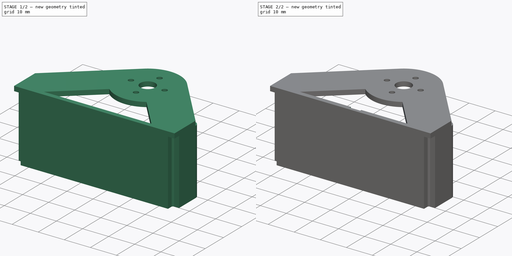
[diagram: build sequence overview — one tinted view per stage of 2, left to right]
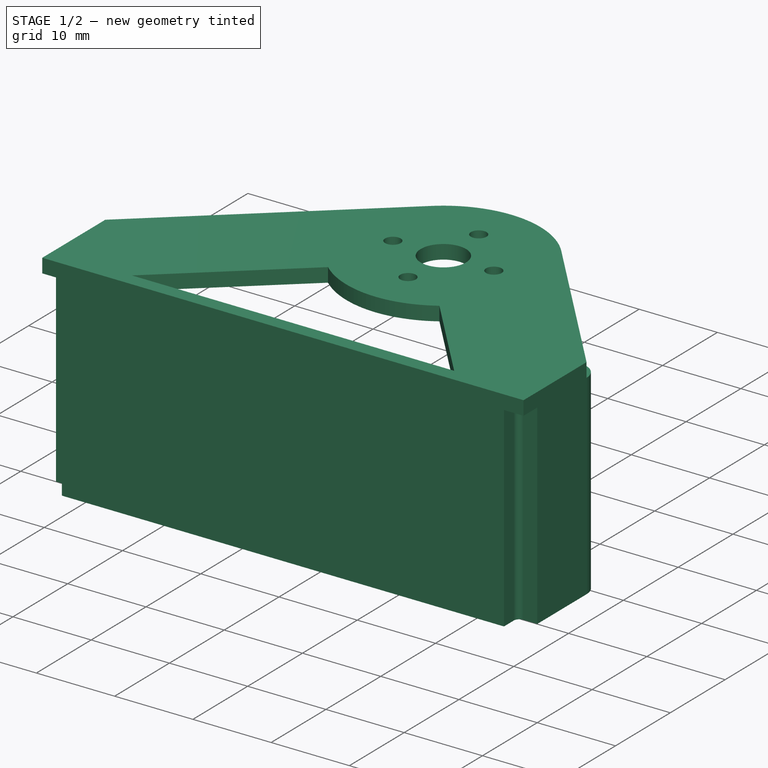
[diagram: stage 1 of 2 — iso view after this stage's code; geometry added in this stage tinted green]
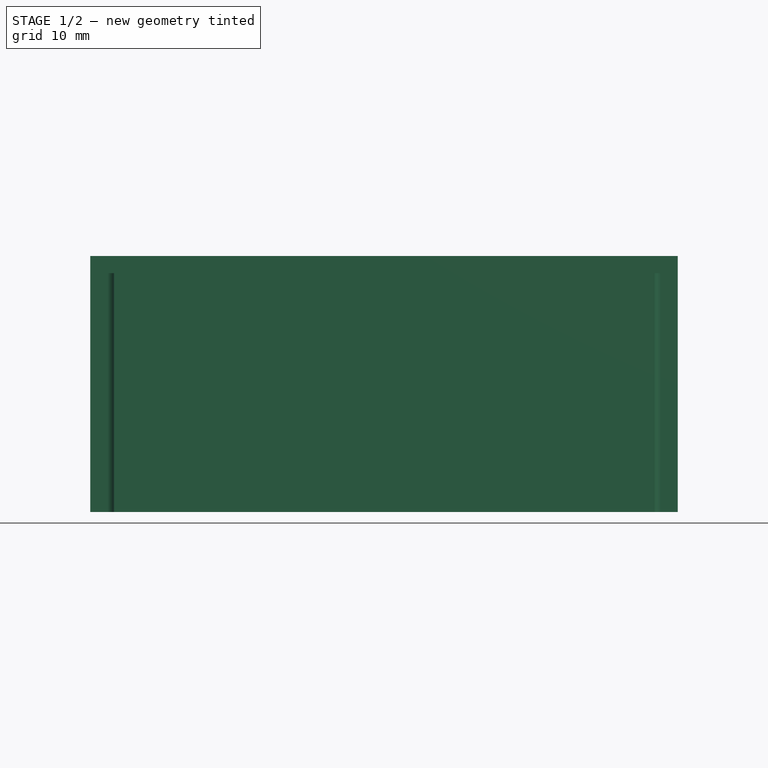
[diagram: stage 1 of 2 — front view after this stage's code; geometry added in this stage tinted green]
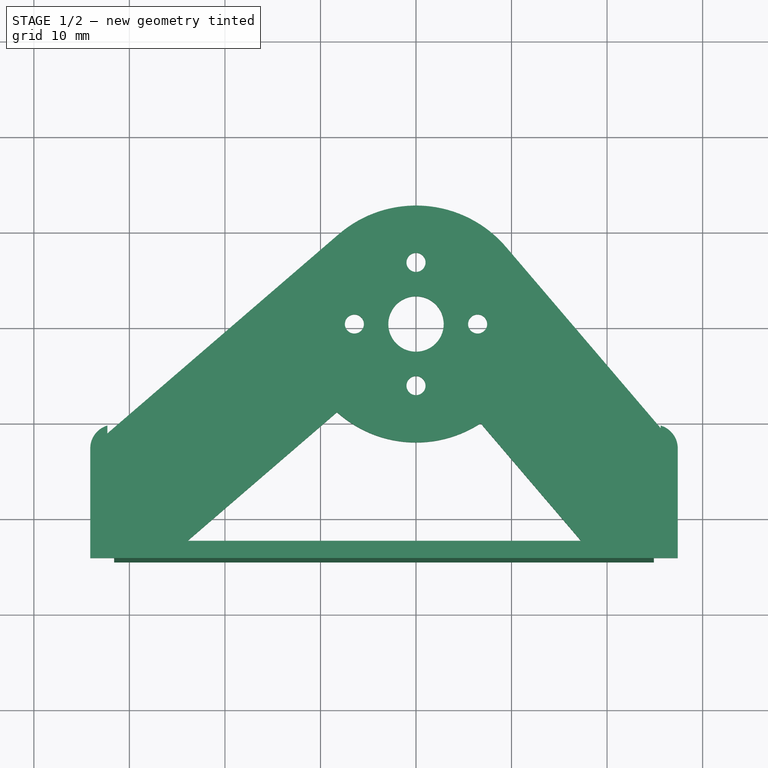
[diagram: stage 1 of 2 — top view after this stage's code; geometry added in this stage tinted green]
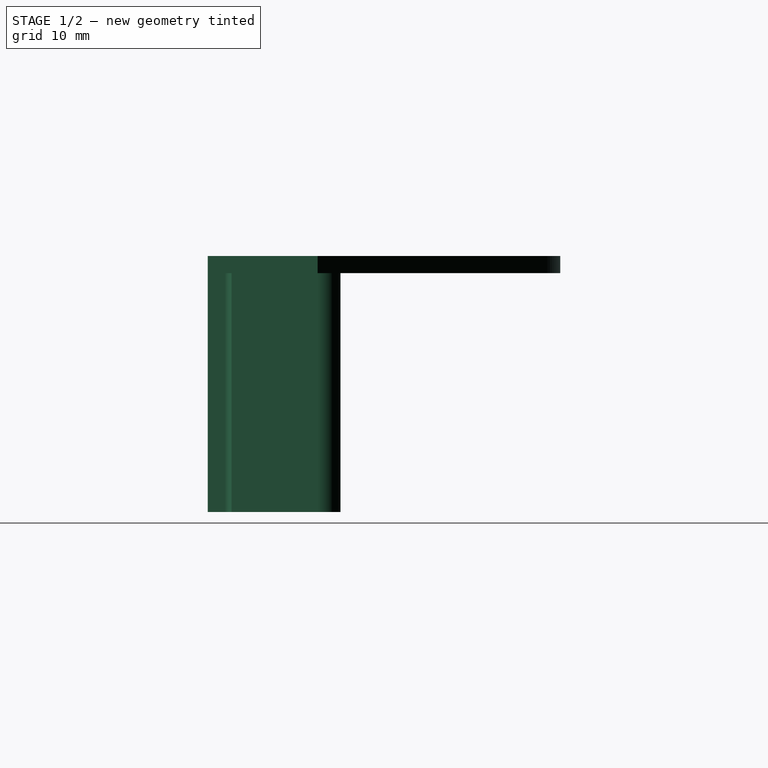
[diagram: stage 1 of 2 — right view after this stage's code; geometry added in this stage tinted green]
FCSTD DOCUMENT  (FreeCAD 0.16R4928 (Git))
Label: multi_camera_mount_a_p1
License: All rights reserved
LicenseURL: http://en.wikipedia.org/wiki/All_rights_reserved
objects: Sketcher::SketchObject×4, PartDesign::Pad×2, PartDesign::Pocket×2
note: 12 computed .brp shape members not serialized (recipe doc carries the construction recipe); baked Part::Feature solids carry a one-line shape summary decoded from their .brp

FEATURE [Sketcher::SketchObject] Sketch
  sketch-geometry (22):
    g0: Circle [constr] CenterX=0 CenterY=0 CenterZ=0 NormalX=0 NormalY=0 NormalZ=1 Radius=12.4
    g1: Circle CenterX=6.45 CenterY=0 CenterZ=0 NormalX=0 NormalY=0 NormalZ=1 Radius=1
    g2: Circle CenterX=-6.45 CenterY=0 CenterZ=0 NormalX=0 NormalY=0 NormalZ=1 Radius=1
    g3: Circle CenterX=0 CenterY=6.45 CenterZ=0 NormalX=0 NormalY=0 NormalZ=1 Radius=1
    g4: Circle CenterX=0 CenterY=-6.45 CenterZ=0 NormalX=0 NormalY=0 NormalZ=1 Radius=1
    g5: LineSegment [constr] StartX=-6.45 StartY=0 StartZ=0 EndX=0 EndY=0 EndZ=0
    g6: LineSegment [constr] StartX=0 StartY=0 StartZ=0 EndX=0 EndY=6.45 EndZ=0
    g7: LineSegment [constr] StartX=0 StartY=0 StartZ=0 EndX=6.45 EndY=0 EndZ=0
    g8: LineSegment [constr] StartX=0 StartY=0 StartZ=0 EndX=0 EndY=-6.45 EndZ=0
    g9: LineSegment StartX=9.43127 StartY=8.05053 StartZ=0 EndX=27.4 EndY=-13 EndZ=0
    g10: LineSegment StartX=-8.09127 StartY=9.39634 StartZ=0 EndX=-34.1 EndY=-13 EndZ=0
    g11: LineSegment StartX=27.4 StartY=-13 StartZ=0 EndX=27.4 EndY=-24.5 EndZ=0
    g12: LineSegment StartX=27.4 StartY=-24.5 StartZ=0 EndX=-34.1 EndY=-24.5 EndZ=0
    g13: LineSegment StartX=-34.1 StartY=-24.5 StartZ=0 EndX=-34.1 EndY=-13 EndZ=0
    g14: Circle CenterX=0 CenterY=0 CenterZ=0 NormalX=0 NormalY=0 NormalZ=1 Radius=2.9
    g15: LineSegment StartX=-8.27376 StartY=-9.23607 StartZ=0 EndX=-23.9093 EndY=-22.7 EndZ=0
    g16: LineSegment StartX=-23.9093 StartY=-22.7 StartZ=0 EndX=17.2731 EndY=-22.7 EndZ=0
    g17: LineSegment StartX=17.2731 StartY=-22.7 StartZ=0 EndX=6.76629 EndY=-10.3912 EndZ=0
    g18: LineSegment [constr] StartX=-24.5928 StartY=-4.81323 StartZ=0 EndX=-15.4575 EndY=-15.422 EndZ=0
    g19: LineSegment [constr] StartX=10.7146 StartY=-15.0167 StartZ=0 EndX=21.3628 EndY=-5.92734 EndZ=0
    g20: ArcOfCircle CenterX=0 CenterY=0 CenterZ=0 NormalX=0 NormalY=0 NormalZ=1 Radius=12.4 StartAngle=0.70658 EndAngle=2.2817
    g21: ArcOfCircle CenterX=0 CenterY=0 CenterZ=0 NormalX=0 NormalY=0 NormalZ=1 Radius=12.4 StartAngle=3.98189 EndAngle=5.28958
  constraints (62):
    c: Coincident(g0,g-1)
    c: Radius(g0) = 12.4
    c: PointOnObject(g1,g-1)
    c: PointOnObject(g2,g-1)
    c: PointOnObject(g3,g-2)
    c: PointOnObject(g4,g-2)
    c: Equal(g1,g4)
    c: Equal(g4,g2)
    c: Equal(g2,g3)
    c: Radius(g1) = 1
    c: Coincident(g5,g2)
    c: Coincident(g5,g-1)
    c: Coincident(g6,g3)
    c: Coincident(g6,g5)
    c: Coincident(g7,g-1)
    c: Coincident(g7,g1)
    c: Coincident(g8,g-1)
    c: Coincident(g8,g4)
    c: Equal(g8,g7)
    c: Equal(g7,g5)
    c: Equal(g5,g6)
    c: DistanceX(g1,g2) = -12.9
    c: PointOnObject(g9,g0)
    c: PointOnObject(g10,g0)
    c: Tangent(g10,g0)
    c: Tangent(g9,g0)
    c: Coincident(g11,g12)
    c: Coincident(g12,g13)
    c: Horizontal(g12)
    c: Vertical(g11)
    c: Vertical(g13)
    c: Coincident(g9,g11)
    c: Coincident(g10,g13)
    c: Distance(g11) = 11.5
    c: Distance(g12) = 61.5
    c: Equal(g11,g13)
    c: DistanceY(g-1,g11) = -24.5
    c: Coincident(g14,g-1)
    c: Radius(g14) = 2.9
    c: DistanceX(g-1,g12) = -34.1
    c: PointOnObject(g15,g0)
    c: Coincident(g16,g15)
    c: Horizontal(g16)
    c: Coincident(g17,g16)
    c: PointOnObject(g17,g0)
    c: DistanceY(g16,g11) = -1.8
    c: Parallel(g17,g9)
    c: Parallel(g10,g15)
    c: PointOnObject(g18,g10)
    c: PointOnObject(g18,g15)
    c: Perpendicular(g15,g18)
    c: PointOnObject(g19,g17)
    c: PointOnObject(g19,g9)
    c: Perpendicular(g17,g19)
    c: Equal(g18,g19)
    c: Coincident(g20,g-1)
    c: Coincident(g20,g10)
    c: Coincident(g20,g9)
    c: Coincident(g21,g-1)
    c: Coincident(g21,g15)
    c: Coincident(g21,g17)
    c: Distance(g18) = 14
FEATURE [PartDesign::Pad] Pad
  Length = 1.8
  Length2 = 100
  Sketch = -> Sketch
  Type = 0
FEATURE [Sketcher::SketchObject] Sketch001
  ExternalGeometry = -> [Pad]
  Placement = pos=(0,0,0) rot=(1,0,0;3.14159rad)
  Support = -> Pad [Face16]
  sketch-geometry (18):
    g0: LineSegment StartX=24.9 StartY=24.5 StartZ=0 EndX=-31.6 EndY=24.5 EndZ=0
    g1: LineSegment StartX=24.9 StartY=24.5 StartZ=0 EndX=24.9 EndY=22.7 EndZ=0
    g2: LineSegment StartX=-31.6 StartY=24.5 StartZ=0 EndX=-31.6 EndY=22.7 EndZ=0
    g3: LineSegment StartX=-32.3 StartY=22 StartZ=0 EndX=-34.1 EndY=22 EndZ=0
    g4: LineSegment StartX=25.6 StartY=22 StartZ=0 EndX=27.4 EndY=22 EndZ=0
    g5: ArcOfCircle CenterX=-32.3 CenterY=22.7 CenterZ=0 NormalX=0 NormalY=0 NormalZ=1 Radius=0.7 StartAngle=4.71239 EndAngle=6.28319
    g6: ArcOfCircle CenterX=25.6 CenterY=22.7 CenterZ=0 NormalX=0 NormalY=0 NormalZ=1 Radius=0.7 StartAngle=3.14159 EndAngle=4.71239
    g7: LineSegment StartX=27.4 StartY=22 StartZ=0 EndX=27.4 EndY=13 EndZ=0
    g8: LineSegment StartX=-34.1 StartY=22 StartZ=0 EndX=-34.1 EndY=13 EndZ=0
    g9: ArcOfCircle CenterX=-31.6 CenterY=13 CenterZ=0 NormalX=0 NormalY=0 NormalZ=1 Radius=2.5 StartAngle=3.14159 EndAngle=4.42859
    g10: ArcOfCircle CenterX=24.9 CenterY=13 CenterZ=0 NormalX=0 NormalY=0 NormalZ=1 Radius=2.5 StartAngle=4.99618 EndAngle=6.28319
    g11: LineSegment StartX=-32.3 StartY=10.6 StartZ=0 EndX=-32.3 EndY=20.2 EndZ=0
    g12: LineSegment StartX=25.6 StartY=10.6 StartZ=0 EndX=25.6 EndY=20.2 EndZ=0
    g13: ArcOfCircle CenterX=-32.3 CenterY=22.7 CenterZ=0 NormalX=0 NormalY=0 NormalZ=1 Radius=2.5 StartAngle=4.71239 EndAngle=6.28319
    g14: ArcOfCircle CenterX=25.6 CenterY=22.7 CenterZ=0 NormalX=0 NormalY=0 NormalZ=1 Radius=2.5 StartAngle=3.14159 EndAngle=4.71239
    g15: LineSegment StartX=-29.8 StartY=22.7 StartZ=0 EndX=23.1 EndY=22.7 EndZ=0
    g16: LineSegment [constr] StartX=-34.1 StartY=13 StartZ=0 EndX=-32.3 EndY=13 EndZ=0
    g17: LineSegment [constr] StartX=27.4 StartY=13 StartZ=0 EndX=25.6 EndY=13 EndZ=0
  constraints (55):
    c: PointOnObject(g0,g-3)
    c: DistanceX(g0,g-3) = -2.5
    c: DistanceX(g0,g-3) = 2.5
    c: Coincident(g1,g0)
    c: Vertical(g1)
    c: Coincident(g2,g0)
    c: Vertical(g2)
    c: Equal(g1,g2)
    c: PointOnObject(g3,g-4)
    c: Horizontal(g3)
    c: PointOnObject(g4,g-5)
    c: Horizontal(g4)
    c: Tangent(g3,g5) = 1.5708
    c: Tangent(g1,g6) = -1.5708
    c: Tangent(g4,g6) = -1.5708
    c: DistanceY(g4,g-5) = 2.5
    c: DistanceY(g3,g-4) = 2.5
    c: Equal(g5,g6)
    c: Equal(g2,g1)
    c: Radius(g5) = 0.7
    c: Coincident(g7,g4)
    c: Coincident(g7,g-5)
    c: Coincident(g8,g3)
    c: Coincident(g8,g-4)
    c: Coincident(g9,g8)
    c: Coincident(g10,g7)
    c: Equal(g10,g9)
    c: Coincident(g11,g9)
    c: Vertical(g11)
    c: Coincident(g12,g10)
    c: Vertical(g12)
    c: Radius(g9) = 2.5
    c: Tangent(g9,g-4)
    c: Coincident(g13,g5)
    c: Coincident(g14,g6)
    c: Coincident(g12,g14)
    c: PointOnObject(g13,g-6)
    c: PointOnObject(g14,g-6)
    c: Coincident(g15,g13)
    c: Coincident(g15,g14)
    c: Equal(g13,g14)
    c: Radius(g13) = 2.5
    c: Equal(g3,g4)
    c: Coincident(g2,g5)
    c: Coincident(g11,g13)
    c: PointOnObject(g16,g11)
    c: Horizontal(g16)
    c: DistanceX(g16) = 1.8
    c: Coincident(g17,g7)
    c: PointOnObject(g17,g12)
    c: Horizontal(g17)
    c: PointOnObject(g10,g17)
    c: PointOnObject(g9,g16)
    c: Equal(g17,g16)
    c: Coincident(g16,g8)
FEATURE [PartDesign::Pad] Pad001
  Length = 25
  Length2 = 100
  Sketch = -> Sketch001
  Type = 0
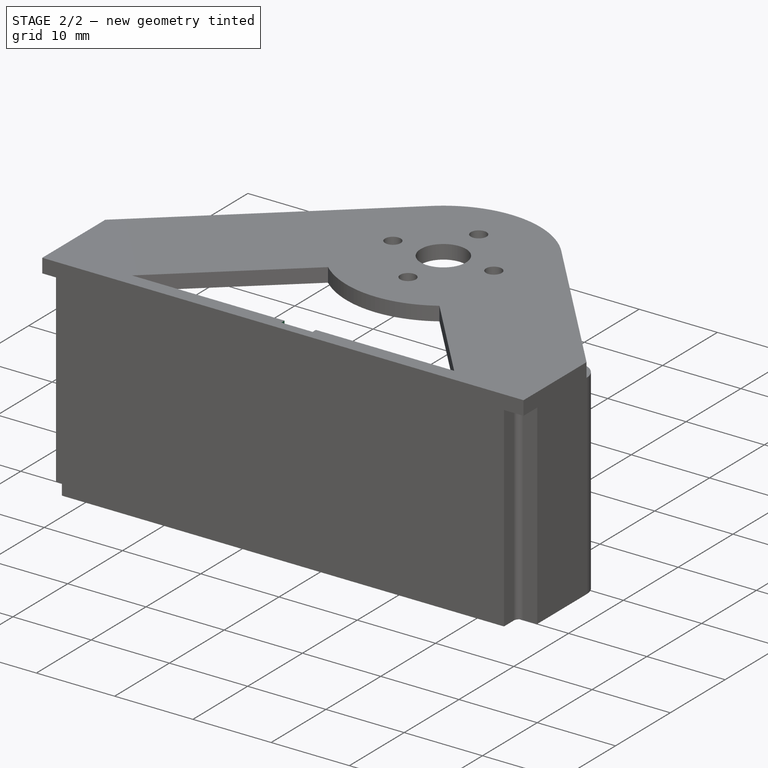
[diagram: stage 2 of 2 — iso view after this stage's code; geometry added in this stage tinted green]
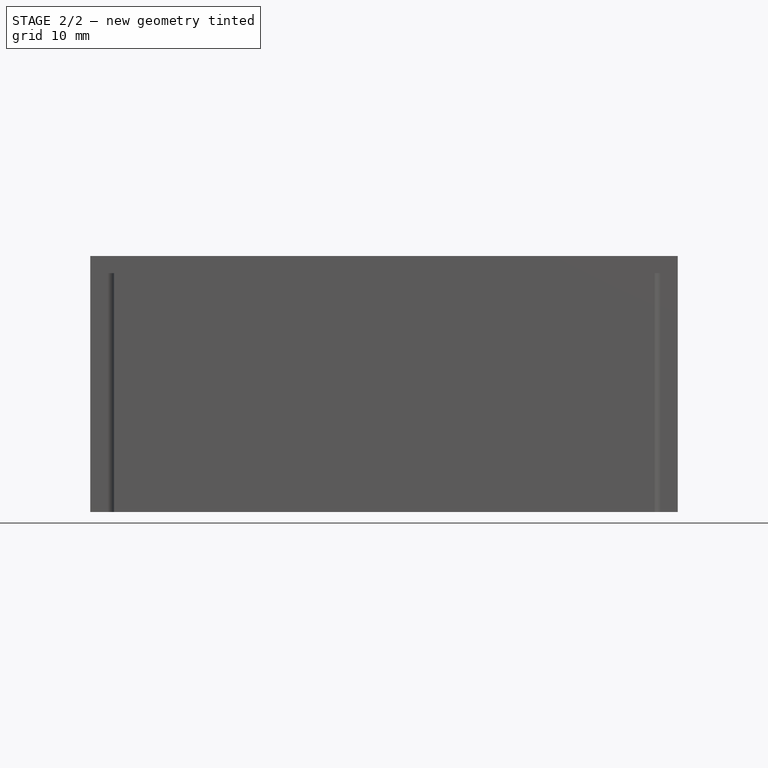
[diagram: stage 2 of 2 — front view after this stage's code; geometry added in this stage tinted green]
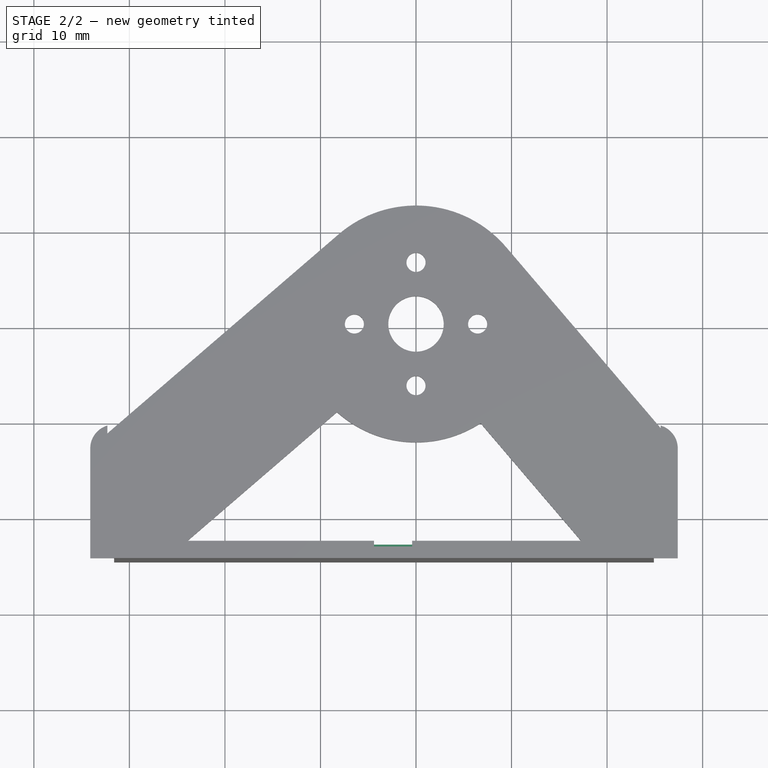
[diagram: stage 2 of 2 — top view after this stage's code; geometry added in this stage tinted green]
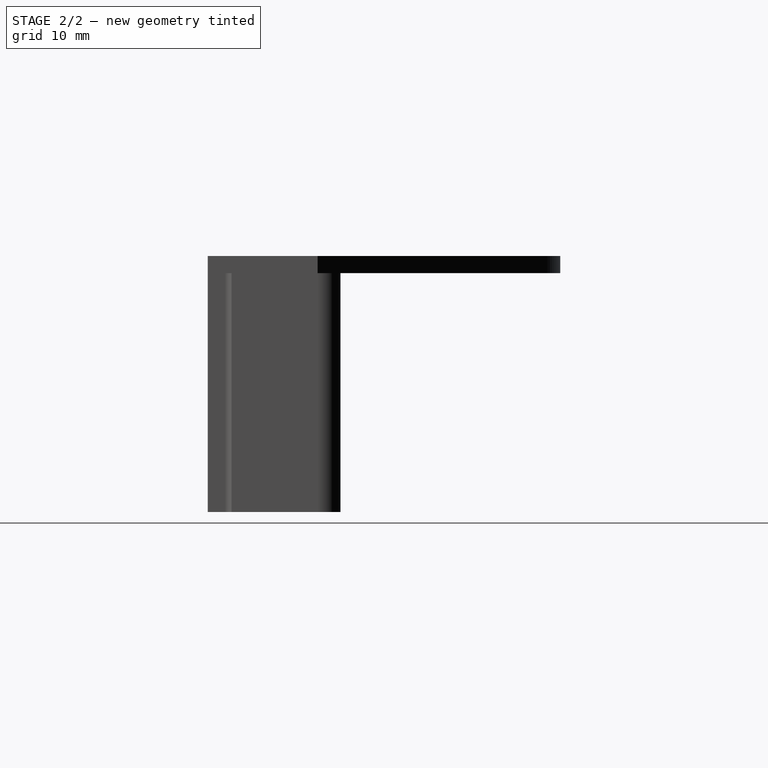
[diagram: stage 2 of 2 — right view after this stage's code; geometry added in this stage tinted green]
FEATURE [Sketcher::SketchObject] Sketch004
  ExternalGeometry = -> [Pad001]
  Placement = pos=(0,0,1.8) rot=(0,0,1;0rad)
  Support = -> Pad001 [Face5]
  sketch-geometry (4):
    g0: LineSegment StartX=-4.4 StartY=-22.7 StartZ=0 EndX=-0.4 EndY=-22.7 EndZ=0
    g1: LineSegment StartX=-0.4 StartY=-22.7 StartZ=0 EndX=-0.4 EndY=-23.3 EndZ=0
    g2: LineSegment StartX=-0.4 StartY=-23.3 StartZ=0 EndX=-4.4 EndY=-23.3 EndZ=0
    g3: LineSegment StartX=-4.4 StartY=-23.3 StartZ=0 EndX=-4.4 EndY=-22.7 EndZ=0
  constraints (12):
    c: Coincident(g0,g1)
    c: Coincident(g1,g2)
    c: Coincident(g2,g3)
    c: Coincident(g3,g0)
    c: Horizontal(g0)
    c: Horizontal(g2)
    c: Vertical(g1)
    c: Vertical(g3)
    c: PointOnObject(g0,g-3)
    c: DistanceX(g-4,g0) = 27.9
    c: Distance(g2) = 4
    c: Distance(g3) = 0.6
FEATURE [PartDesign::Pocket] Pocket
  Length = 22.8
  Sketch = -> Sketch004
  Type = 0
FEATURE [Sketcher::SketchObject] Sketch005
  ExternalGeometry = -> [Pocket]
  Placement = pos=(0,0,-25) rot=(1,0,0;3.14159rad)
  Support = -> Pocket [Face35]
  sketch-geometry (8):
    g0: LineSegment StartX=25.6 StartY=17.3 StartZ=0 EndX=26.8 EndY=17.3 EndZ=0
    g1: LineSegment StartX=26.8 StartY=17.3 StartZ=0 EndX=26.8 EndY=14.1 EndZ=0
    g2: LineSegment StartX=26.8 StartY=14.1 StartZ=0 EndX=25.6 EndY=14.1 EndZ=0
    g3: LineSegment StartX=25.6 StartY=14.1 StartZ=0 EndX=25.6 EndY=17.3 EndZ=0
    g4: LineSegment StartX=-32.3 StartY=17.3 StartZ=0 EndX=-33.5 EndY=17.3 EndZ=0
    g5: LineSegment StartX=-33.5 StartY=17.3 StartZ=0 EndX=-33.5 EndY=14.1 EndZ=0
    g6: LineSegment StartX=-33.5 StartY=14.1 StartZ=0 EndX=-32.3 EndY=14.1 EndZ=0
    g7: LineSegment StartX=-32.3 StartY=14.1 StartZ=0 EndX=-32.3 EndY=17.3 EndZ=0
  constraints (24):
    c: Coincident(g0,g1)
    c: Coincident(g1,g2)
    c: Coincident(g2,g3)
    c: Coincident(g3,g0)
    c: Horizontal(g0)
    c: Horizontal(g2)
    c: Vertical(g1)
    c: Vertical(g3)
    c: PointOnObject(g0,g-4)
    c: Coincident(g4,g5)
    c: Coincident(g5,g6)
    c: Coincident(g6,g7)
    c: Coincident(g7,g4)
    c: Horizontal(g4)
    c: Horizontal(g6)
    c: Vertical(g5)
    c: Vertical(g7)
    c: PointOnObject(g4,g-3)
    c: Equal(g6,g2)
    c: PointOnObject(g0,g4)
    c: DistanceY(g4,g-3) = 2.9
    c: DistanceY(g5) = -3.2
    c: Distance(g6) = 1.2
    c: PointOnObject(g1,g6)
FEATURE [PartDesign::Pocket] Pocket001
  Length = 2.5
  Sketch = -> Sketch005
  Type = 0
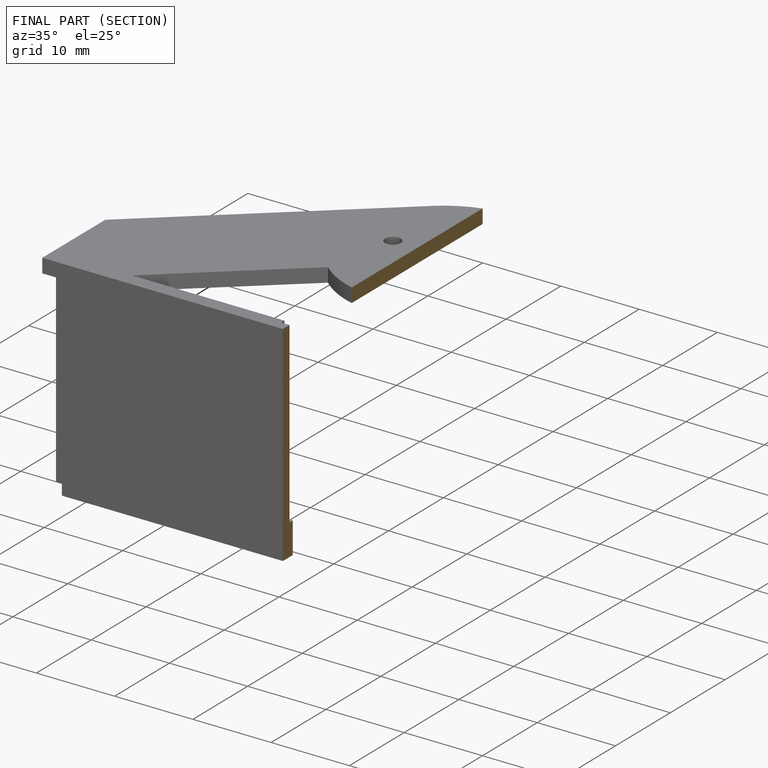
[diagram: finished part — half-section view (interior)]
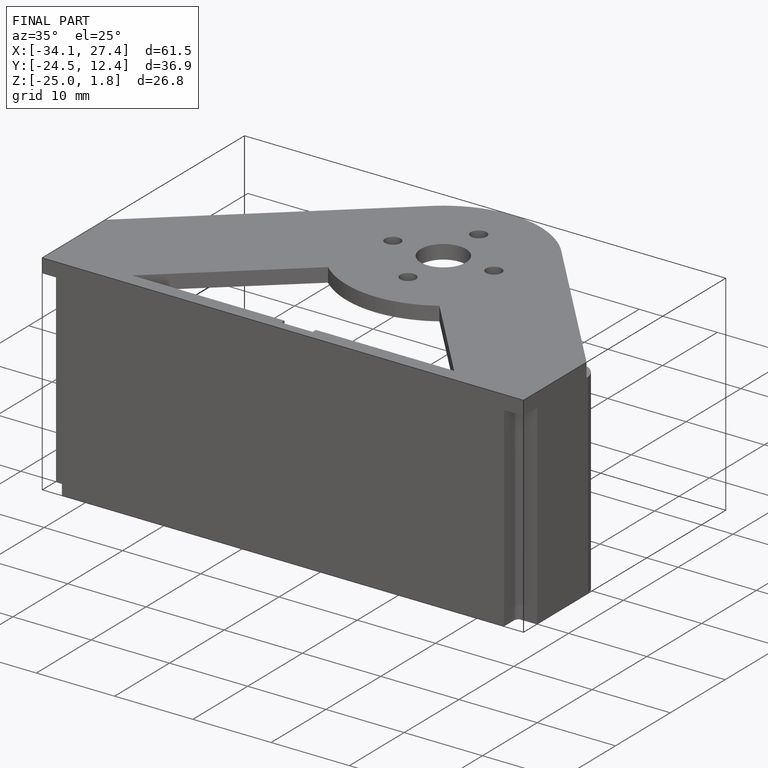
[diagram: finished part — iso view with bounding-box wireframe]
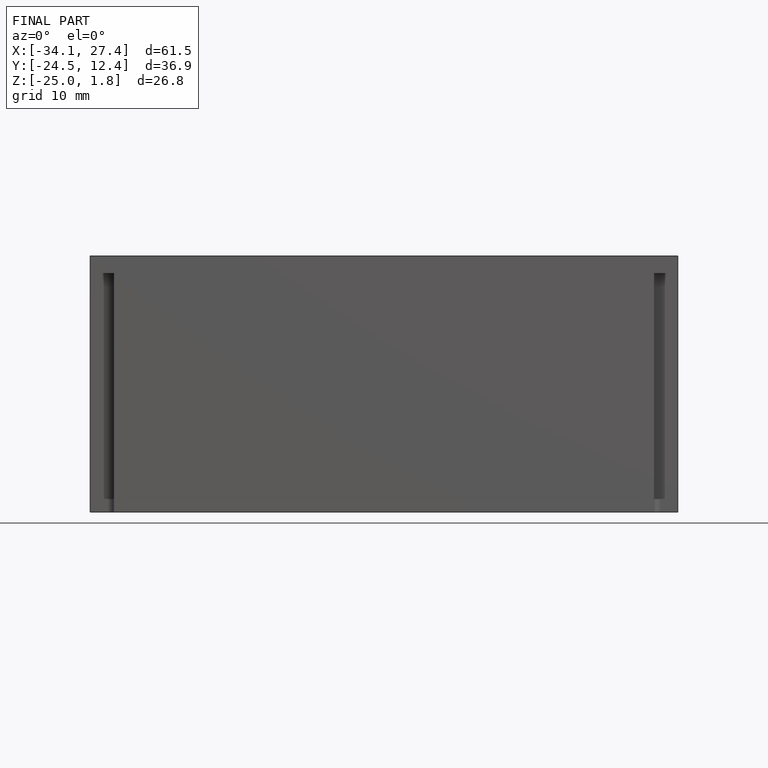
[diagram: finished part — front view with bounding-box wireframe]
